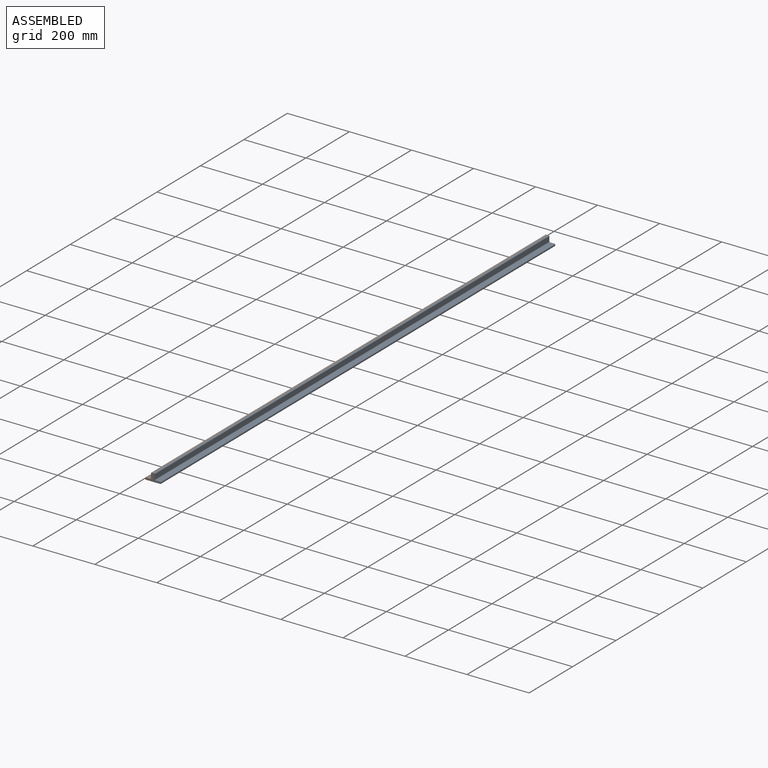
[diagram: assembled view]
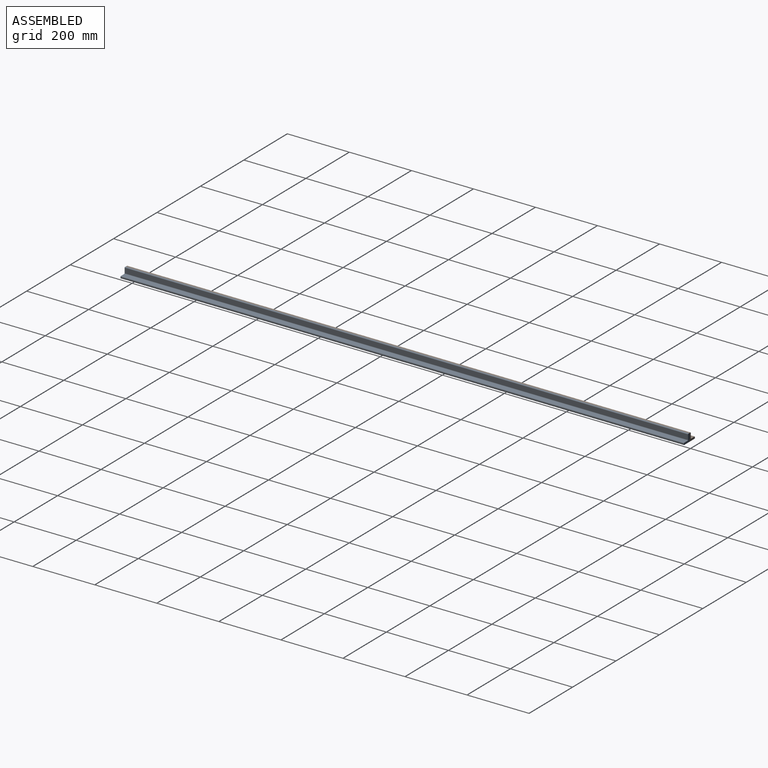
[diagram: assembled view, second angle]
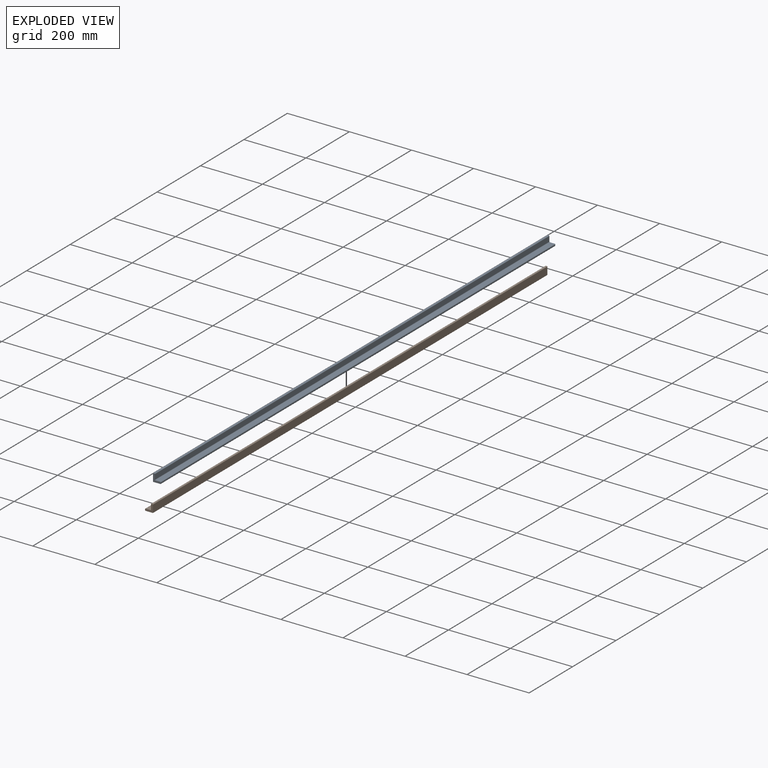
[diagram: exploded view]
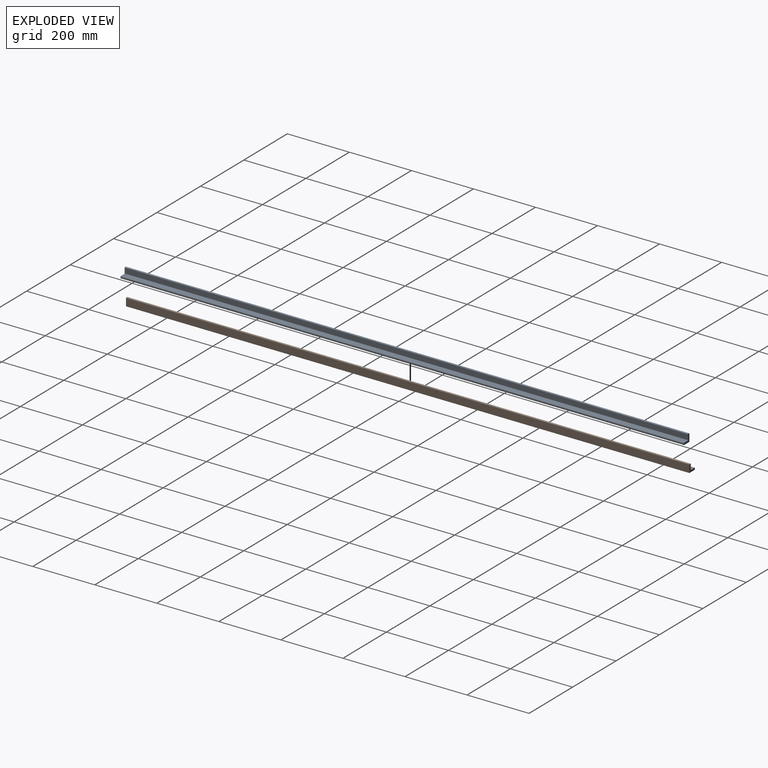
[diagram: exploded view, second angle]
ASSEMBLY  parts=2 mates=3
PART A: 13 faces, bbox 25.4x1816.1x25.4 mm
  f0: cylinder r=1.52mm len=1816.1mm, axis (0,1,0), area 4347.6mm2, adj f1,f10,f11,f12
  f1: plane 1816.1x16mm, normal (1,0,0), area 29061.2mm2, adj f0,f2,f11,f12
  f2: cylinder r=1.52mm len=1816.1mm, axis (0,1,0), area 4347.6mm2, adj f1,f3,f11,f12
  f3: plane 1816.1x3.3mm, normal (0,0,1), area 5996.8mm2, adj f2,f4,f11,f12
  f4: cylinder r=1.52mm len=1816.1mm, axis (0,1,0), area 4347.6mm2, adj f3,f5,f11,f12
  f5: plane 1816.1x23.88mm, normal (-1,0,0), area 43361.2mm2, adj f4,f6,f11,f12
  f6: plane 1816.1x23.88mm, normal (0,0,-1), area 43361.2mm2, adj f5,f7,f11,f12
  f7: cylinder r=1.52mm len=1816.1mm, axis (0,1,0), area 4347.6mm2, adj f6,f8,f11,f12
  f8: plane 1816.1x3.3mm, normal (1,0,0), area 5996.8mm2, adj f7,f9,f11,f12
  f9: cylinder r=1.52mm len=1816.1mm, axis (0,1,0), area 4347.6mm2, adj f8,f10,f11,f12
  f10: plane 1816.1x16mm, normal (0,0,1), area 29061.2mm2, adj f0,f9,f11,f12
  f11: plane 25.4x25.4mm, normal (0,-1,0), area 280.8mm2, adj f0,f1,f2,f3,f4,f5,f6,f7
  f12: plane 25.4x25.4mm, normal (0,1,0), area 280.8mm2, adj f0,f1,f2,f3,f4,f5,f6,f7
PART B: same geometry as A
PLACE A t=(-424.79,519.14,-239.19)mm
PLACE B rot(axis=(0,0,1),180deg) t=(-424.79,-1296.96,-239.19)mm
MATE planar B.f6 <-> A.f6  axis (0,0,-1) through (-436.73,-388.91,-239.19)mm
MATE planar B.f5 <-> A.f5  axis (1,0,0) through (-424.79,-388.91,-227.25)mm
MATE planar B.f12 <-> A.f11  axis (0,-1,0) through (-433.36,-1296.96,-230.62)mm
